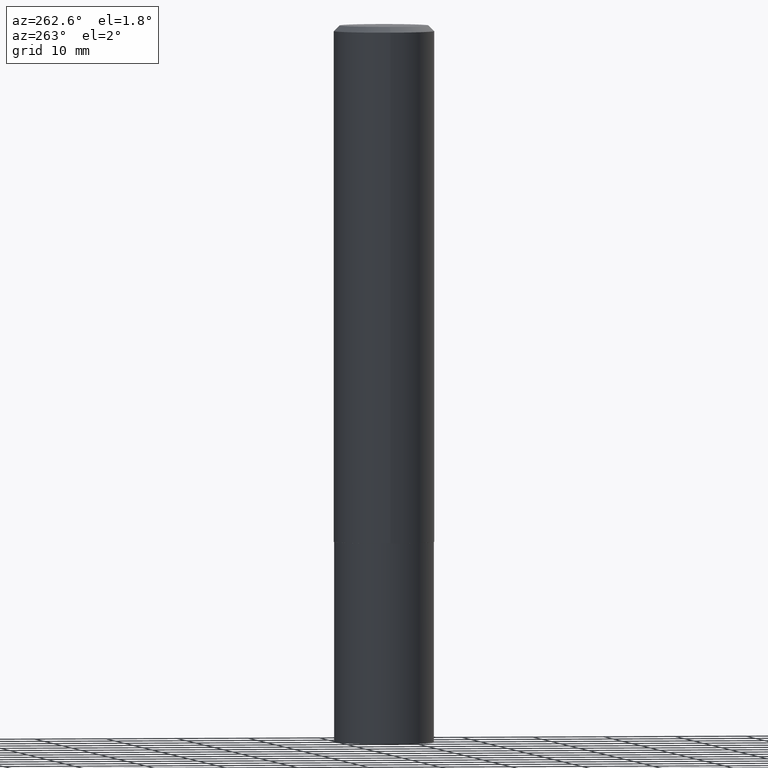
[diagram: clean part render]
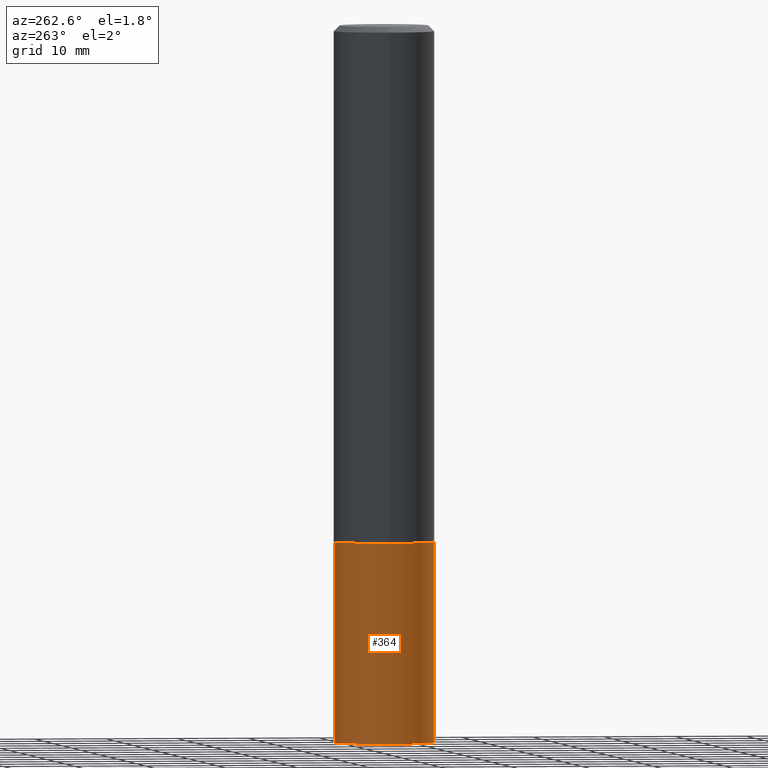
[diagram: same view with one face highlighted and labeled with its STEP entity id]
A machine part, auxiliary view. The second image highlights one B-rep face of the part: STEP entity #364.
In plain terms, the highlighted cylindrical surface (partial cylindrical patch) has radius 7.0002 mm, axis along (-0, 0, 1).
Its self-contained STEP definition (entity closure, byte-faithful):
#2 = CARTESIAN_POINT ( 'NONE',  ( 1.958255779754932830E-15, 0.2755999999999901307, -2.835000000000000853 ) ) ;
#4 = AXIS2_PLACEMENT_3D ( 'NONE', #164, #171, #78 ) ;
#8 = EDGE_CURVE ( 'NONE', #281, #116, #339, .T. ) ;
#20 = CARTESIAN_POINT ( 'NONE',  ( -1.924504513970265534E-15, -0.2756000000000099481, -2.834999999999998632 ) ) ;
#30 = VERTEX_POINT ( 'NONE', #2 ) ;
#42 = VECTOR ( 'NONE', #265, 39.37007874015748143 ) ;
#45 = VERTEX_POINT ( 'NONE', #138 ) ;
#47 = AXIS2_PLACEMENT_3D ( 'NONE', #346, #324, #215 ) ;
#68 = LINE ( 'NONE', #263, #42 ) ;
#69 = CARTESIAN_POINT ( 'NONE',  ( 6.932904065534861534E-29, -9.898349595620316510E-15, -2.834999999999999520 ) ) ;
#72 = EDGE_CURVE ( 'NONE', #30, #45, #333, .T. ) ;
#78 = DIRECTION ( 'NONE',  ( -6.982962677686265922E-15, -1.000000000000000000, 3.964946289788480896E-15 ) ) ;
#98 = DIRECTION ( 'NONE',  ( -2.445991184823512157E-29, 3.490733262901045869E-15, 1.000000000000000000 ) ) ;
#116 = VERTEX_POINT ( 'NONE', #311 ) ;
#124 = CARTESIAN_POINT ( 'NONE',  ( 1.958255779754919025E-15, 0.2755999999999862449, -3.937000000000001609 ) ) ;
#138 = CARTESIAN_POINT ( 'NONE',  ( -1.924504513970265534E-15, -0.2756000000000099481, -2.834999999999998632 ) ) ;
#140 = ORIENTED_EDGE ( 'NONE', *, *, #72, .F. ) ;
#153 = AXIS2_PLACEMENT_3D ( 'NONE', #69, #312, #176 ) ;
#164 = CARTESIAN_POINT ( 'NONE',  ( 9.628386351210373593E-29, -1.374513765133727185E-14, -3.937000000000000721 ) ) ;
#171 = DIRECTION ( 'NONE',  ( -2.445991184823511877E-29, 3.490733262901046264E-15, 1.000000000000000000 ) ) ;
#176 = DIRECTION ( 'NONE',  ( -6.982962677686265922E-15, -1.000000000000000000, 3.964946289788480896E-15 ) ) ;
#189 = EDGE_CURVE ( 'NONE', #281, #30, #68, .T. ) ;
#201 = VECTOR ( 'NONE', #98, 39.37007874015748143 ) ;
#213 = FACE_OUTER_BOUND ( 'NONE', #279, .T. ) ;
#215 = DIRECTION ( 'NONE',  ( -6.982962677686265922E-15, -1.000000000000000000, 3.964946289788480896E-15 ) ) ;
#252 = ORIENTED_EDGE ( 'NONE', *, *, #8, .T. ) ;
#263 = CARTESIAN_POINT ( 'NONE',  ( 1.958255779754905615E-15, 0.2755999999999901307, -2.835000000000000853 ) ) ;
#265 = DIRECTION ( 'NONE',  ( -2.445991184823512157E-29, 3.490733262901045869E-15, 1.000000000000000000 ) ) ;
#267 = ORIENTED_EDGE ( 'NONE', *, *, #189, .F. ) ;
#270 = ORIENTED_EDGE ( 'NONE', *, *, #322, .T. ) ;
#273 = CYLINDRICAL_SURFACE ( 'NONE', #47, 0.2756000000000000116 ) ;
#279 = EDGE_LOOP ( 'NONE', ( #267, #252, #270, #140 ) ) ;
#281 = VERTEX_POINT ( 'NONE', #124 ) ;
#311 = CARTESIAN_POINT ( 'NONE',  ( -1.924504513970238713E-15, -0.2756000000000137784, -3.936999999999999389 ) ) ;
#312 = DIRECTION ( 'NONE',  ( -2.445991184823511877E-29, 3.490733262901046264E-15, 1.000000000000000000 ) ) ;
#322 = EDGE_CURVE ( 'NONE', #116, #45, #350, .T. ) ;
#324 = DIRECTION ( 'NONE',  ( -2.445991184823511877E-29, 3.490733262901046264E-15, 1.000000000000000000 ) ) ;
#333 = CIRCLE ( 'NONE', #153, 0.2756000000000000116 ) ;
#339 = CIRCLE ( 'NONE', #4, 0.2756000000000000116 ) ;
#346 = CARTESIAN_POINT ( 'NONE',  ( 6.932904065534861534E-29, -9.898349595620316510E-15, -2.834999999999999520 ) ) ;
#350 = LINE ( 'NONE', #20, #201 ) ;
#364 = ADVANCED_FACE ( 'NONE', ( #213 ), #273, .T. ) ;